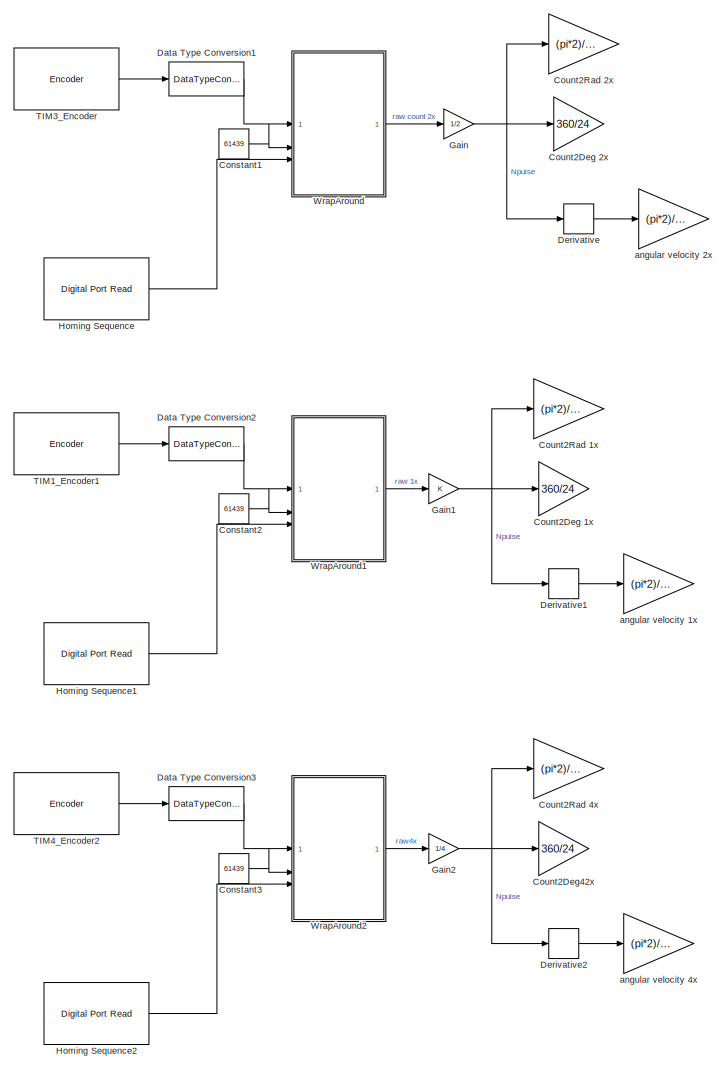
[diagram: root canvas - part 1/2, left side, full height]
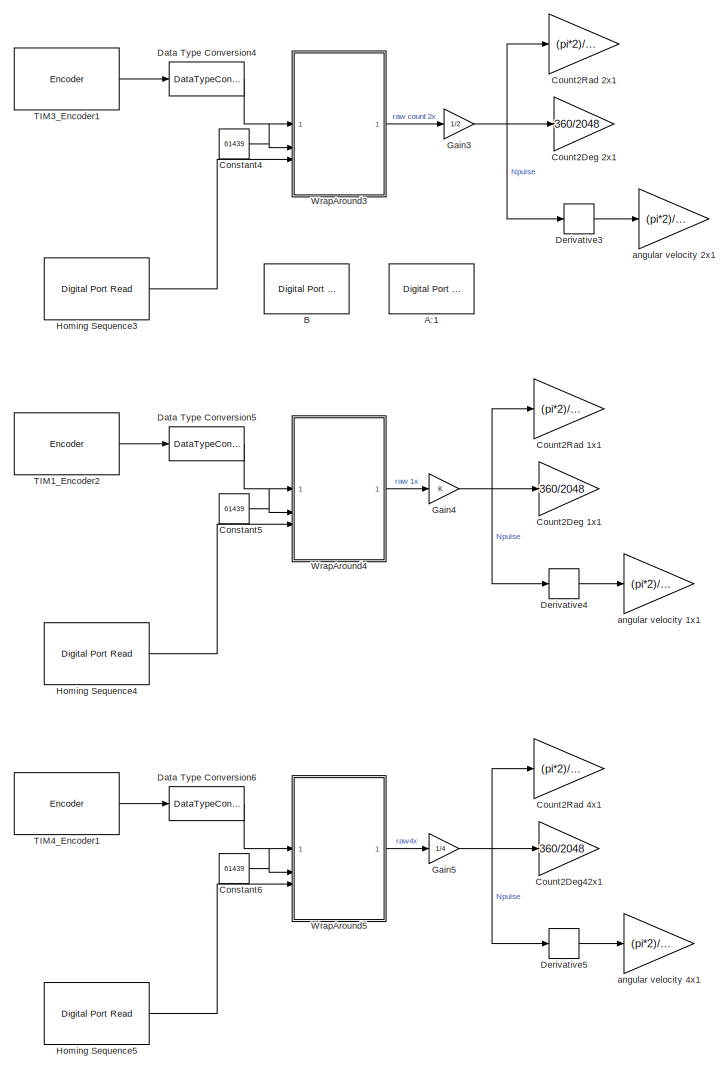
[diagram: root canvas - part 2/2, right side, full height]
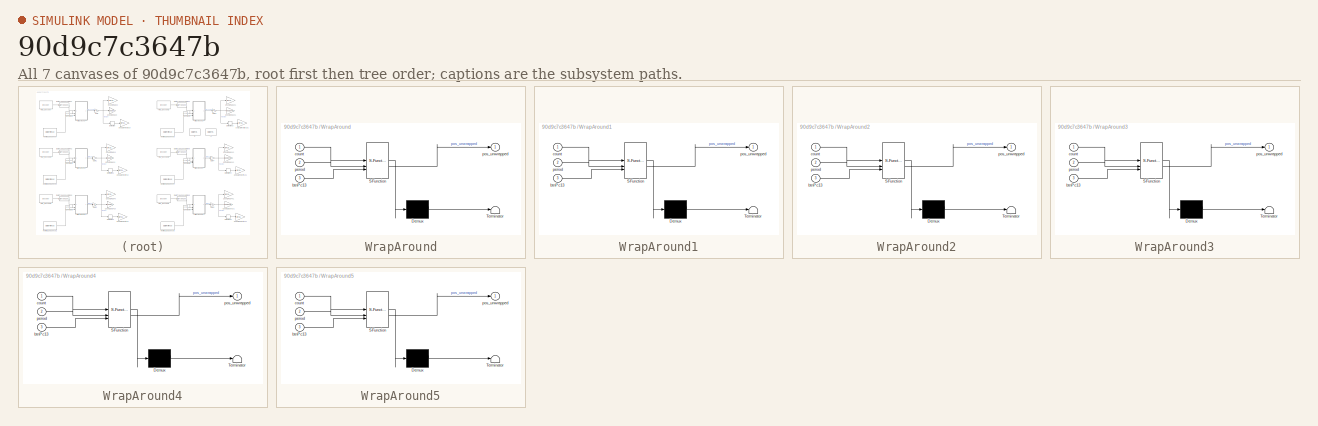
[diagram: thumbnail index - all 7 canvases of the model, root first then tree order]
MODEL slx_90d9c7c3647b
KIND model
CONFIG AbsTol = auto
CONFIG EnableMultiTasking = on
CONFIG FixedStep = 0.1
CONFIG MaxStep = auto
CONFIG MinStep = auto
CONFIG RelTol = 1e-3
CONFIG SampleTimeConstraint = Unconstrained
CONFIG SolverName = FixedStepAuto
CONFIG StartTime = 0.0
CONFIG StopTime = 100
BLOCK [Reference] A:1  REF=stm32f4xxblockslib/Digital Port Read
  LibrarySourceBlock = stm32g4xxblockslib/Digital Port Read
  SourceBlock = stm32f4xxblockslib/Digital Port Read
  SourceType = stm32cube.blocks.DigitalPortRead
BLOCK [Reference] B  REF=stm32f4xxblockslib/Digital Port Read
  LibrarySourceBlock = stm32g4xxblockslib/Digital Port Read
  SourceBlock = stm32f4xxblockslib/Digital Port Read
  SourceType = stm32cube.blocks.DigitalPortRead
BLOCK [Constant] Constant1
  Commented = on
  Value = 61439
BLOCK [Constant] Constant2
  Commented = on
  Value = 61439
BLOCK [Constant] Constant3
  Commented = on
  Value = 61439
BLOCK [Constant] Constant4
  Value = 61439
BLOCK [Constant] Constant5
  Value = 61439
BLOCK [Constant] Constant6
  Value = 61439
BLOCK [Gain] Count2Deg 1x
  Commented = on
  Gain = 360/24
BLOCK [Gain] Count2Deg 1x1
  Gain = 360/2048
BLOCK [Gain] Count2Deg 2x
  Commented = on
  Gain = 360/24
BLOCK [Gain] Count2Deg 2x1
  Gain = 360/2048
BLOCK [Gain] Count2Deg42x
  Commented = on
  Gain = 360/24
BLOCK [Gain] Count2Deg42x1
  Gain = 360/2048
BLOCK [Gain] Count2Rad 1x
  Commented = on
  Gain = (pi*2)/24
BLOCK [Gain] Count2Rad 1x1
  Gain = (pi*2)/2048
BLOCK [Gain] Count2Rad 2x
  Commented = on
  Gain = (pi*2)/24
BLOCK [Gain] Count2Rad 2x1
  Gain = (pi*2)/2048
BLOCK [Gain] Count2Rad 4x
  Commented = on
  Gain = (pi*2)/24
BLOCK [Gain] Count2Rad 4x1
  Gain = (pi*2)/2048
BLOCK [DataTypeConversion] Data Type Conversion1
  Commented = on
  OutDataTypeStr = double
  RndMeth = Floor
  SaturateOnIntegerOverflow = off
BLOCK [DataTypeConversion] Data Type Conversion2
  Commented = on
  OutDataTypeStr = double
  RndMeth = Floor
  SaturateOnIntegerOverflow = off
BLOCK [DataTypeConversion] Data Type Conversion3
  Commented = on
  OutDataTypeStr = double
  RndMeth = Floor
  SaturateOnIntegerOverflow = off
BLOCK [DataTypeConversion] Data Type Conversion4
  OutDataTypeStr = double
  RndMeth = Floor
  SaturateOnIntegerOverflow = off
BLOCK [DataTypeConversion] Data Type Conversion5
  OutDataTypeStr = double
  RndMeth = Floor
  SaturateOnIntegerOverflow = off
BLOCK [DataTypeConversion] Data Type Conversion6
  OutDataTypeStr = double
  RndMeth = Floor
  SaturateOnIntegerOverflow = off
BLOCK [Derivative] Derivative
  Commented = on
BLOCK [Derivative] Derivative1
  Commented = on
BLOCK [Derivative] Derivative2
  Commented = on
BLOCK [Derivative] Derivative3
BLOCK [Derivative] Derivative4
BLOCK [Derivative] Derivative5
BLOCK [Gain] Gain
  Commented = on
  Gain = 1/2
BLOCK [Gain] Gain1
  Commented = on
BLOCK [Gain] Gain2
  Commented = on
  Gain = 1/4
BLOCK [Gain] Gain3
  Gain = 1/2
BLOCK [Gain] Gain4
BLOCK [Gain] Gain5
  Gain = 1/4
BLOCK [Reference] Homing Sequence  REF=stm32f4xxblockslib/Digital Port Read
  Commented = on
  LibrarySourceBlock = stm32g4xxblockslib/Digital Port Read
  SourceBlock = stm32f4xxblockslib/Digital Port Read
  SourceType = stm32cube.blocks.DigitalPortRead
BLOCK [Reference] Homing Sequence1  REF=stm32f4xxblockslib/Digital Port Read
  Commented = on
  LibrarySourceBlock = stm32g4xxblockslib/Digital Port Read
  SourceBlock = stm32f4xxblockslib/Digital Port Read
  SourceType = stm32cube.blocks.DigitalPortRead
BLOCK [Reference] Homing Sequence2  REF=stm32f4xxblockslib/Digital Port Read
  Commented = on
  LibrarySourceBlock = stm32g4xxblockslib/Digital Port Read
  SourceBlock = stm32f4xxblockslib/Digital Port Read
  SourceType = stm32cube.blocks.DigitalPortRead
BLOCK [Reference] Homing Sequence3  REF=stm32f4xxblockslib/Digital Port Read
  LibrarySourceBlock = stm32g4xxblockslib/Digital Port Read
  SourceBlock = stm32f4xxblockslib/Digital Port Read
  SourceType = stm32cube.blocks.DigitalPortRead
BLOCK [Reference] Homing Sequence4  REF=stm32f4xxblockslib/Digital Port Read
  LibrarySourceBlock = stm32g4xxblockslib/Digital Port Read
  SourceBlock = stm32f4xxblockslib/Digital Port Read
  SourceType = stm32cube.blocks.DigitalPortRead
BLOCK [Reference] Homing Sequence5  REF=stm32f4xxblockslib/Digital Port Read
  LibrarySourceBlock = stm32g4xxblockslib/Digital Port Read
  SourceBlock = stm32f4xxblockslib/Digital Port Read
  SourceType = stm32cube.blocks.DigitalPortRead
BLOCK [Reference] TIM1_Encoder1  REF=stm32g4xxblockslib/Encoder
  Commented = on
  SourceBlock = stm32g4xxblockslib/Encoder
  SourceType = stm32cube.blocks.EncoderBlockForG4
BLOCK [Reference] TIM1_Encoder2  REF=stm32g4xxblockslib/Encoder
  SourceBlock = stm32g4xxblockslib/Encoder
  SourceType = stm32cube.blocks.EncoderBlockForG4
BLOCK [Reference] TIM3_Encoder  REF=stm32g4xxblockslib/Encoder
  Commented = on
  SourceBlock = stm32g4xxblockslib/Encoder
  SourceType = stm32cube.blocks.EncoderBlockForG4
BLOCK [Reference] TIM3_Encoder1  REF=stm32g4xxblockslib/Encoder
  SourceBlock = stm32g4xxblockslib/Encoder
  SourceType = stm32cube.blocks.EncoderBlockForG4
BLOCK [Reference] TIM4_Encoder1  REF=stm32g4xxblockslib/Encoder
  SourceBlock = stm32g4xxblockslib/Encoder
  SourceType = stm32cube.blocks.EncoderBlockForG4
BLOCK [Reference] TIM4_Encoder2  REF=stm32g4xxblockslib/Encoder
  Commented = on
  SourceBlock = stm32g4xxblockslib/Encoder
  SourceType = stm32cube.blocks.EncoderBlockForG4
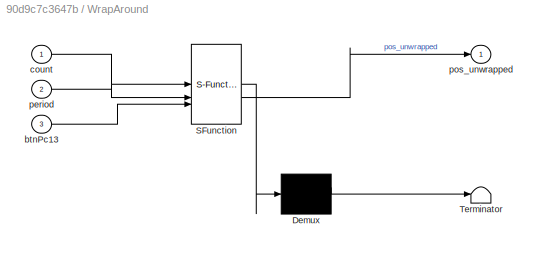
BLOCK [SubSystem] WrapAround
  Commented = on
  ErrorFcn = Stateflow.Translate.translate
  PermitHierarchicalResolution = ExplicitOnly
  SFBlockType = MATLAB Function
  TreatAsAtomicUnit = on
BLOCK [Demux] WrapAround/ Demux 
  Outputs = 1
BLOCK [S-Function] WrapAround/ SFunction 
  EnableBusSupport = off
  FunctionName = sf_sfun
  PortCounts = [3 2]
  SFcnIsStateOwnerBlock = off
  SFunctionDeploymentMode = off
  Tag = Stateflow S-Function 2
BLOCK [Terminator] WrapAround/ Terminator 
BLOCK [Inport] WrapAround/btnPc13
  Port = 3
BLOCK [Inport] WrapAround/count
BLOCK [Inport] WrapAround/period
  Port = 2
BLOCK [Outport] WrapAround/pos_unwrapped
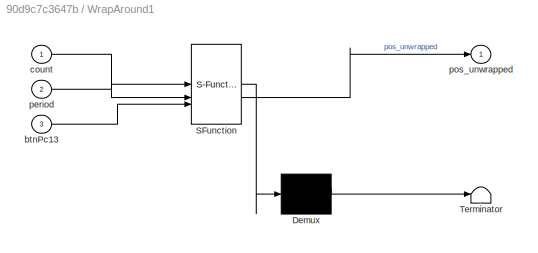
BLOCK [SubSystem] WrapAround1
  Commented = on
  ErrorFcn = Stateflow.Translate.translate
  PermitHierarchicalResolution = ExplicitOnly
  SFBlockType = MATLAB Function
  TreatAsAtomicUnit = on
BLOCK [Demux] WrapAround1/ Demux 
  Outputs = 1
BLOCK [S-Function] WrapAround1/ SFunction 
  EnableBusSupport = off
  FunctionName = sf_sfun
  PortCounts = [3 2]
  SFcnIsStateOwnerBlock = off
  SFunctionDeploymentMode = off
  Tag = Stateflow S-Function 1
BLOCK [Terminator] WrapAround1/ Terminator 
BLOCK [Inport] WrapAround1/btnPc13
  Port = 3
BLOCK [Inport] WrapAround1/count
BLOCK [Inport] WrapAround1/period
  Port = 2
BLOCK [Outport] WrapAround1/pos_unwrapped
BLOCK [SubSystem] WrapAround2
  Commented = on
  ErrorFcn = Stateflow.Translate.translate
  PermitHierarchicalResolution = ExplicitOnly
  SFBlockType = MATLAB Function
  TreatAsAtomicUnit = on
BLOCK [Demux] WrapAround2/ Demux 
  Outputs = 1
BLOCK [S-Function] WrapAround2/ SFunction 
  EnableBusSupport = off
  FunctionName = sf_sfun
  PortCounts = [3 2]
  SFcnIsStateOwnerBlock = off
  SFunctionDeploymentMode = off
  Tag = Stateflow S-Function 3
BLOCK [Terminator] WrapAround2/ Terminator 
BLOCK [Inport] WrapAround2/btnPc13
  Port = 3
BLOCK [Inport] WrapAround2/count
BLOCK [Inport] WrapAround2/period
  Port = 2
BLOCK [Outport] WrapAround2/pos_unwrapped
BLOCK [SubSystem] WrapAround3
  ErrorFcn = Stateflow.Translate.translate
  PermitHierarchicalResolution = ExplicitOnly
  SFBlockType = MATLAB Function
  TreatAsAtomicUnit = on
BLOCK [Demux] WrapAround3/ Demux 
  Outputs = 1
BLOCK [S-Function] WrapAround3/ SFunction 
  EnableBusSupport = off
  FunctionName = sf_sfun
  PortCounts = [3 2]
  SFcnIsStateOwnerBlock = off
  SFunctionDeploymentMode = off
  Tag = Stateflow S-Function 4
BLOCK [Terminator] WrapAround3/ Terminator 
BLOCK [Inport] WrapAround3/btnPc13
  Port = 3
BLOCK [Inport] WrapAround3/count
BLOCK [Inport] WrapAround3/period
  Port = 2
BLOCK [Outport] WrapAround3/pos_unwrapped
BLOCK [SubSystem] WrapAround4
  ErrorFcn = Stateflow.Translate.translate
  PermitHierarchicalResolution = ExplicitOnly
  SFBlockType = MATLAB Function
  TreatAsAtomicUnit = on
BLOCK [Demux] WrapAround4/ Demux 
  Outputs = 1
BLOCK [S-Function] WrapAround4/ SFunction 
  EnableBusSupport = off
  FunctionName = sf_sfun
  PortCounts = [3 2]
  SFcnIsStateOwnerBlock = off
  SFunctionDeploymentMode = off
  Tag = Stateflow S-Function 5
BLOCK [Terminator] WrapAround4/ Terminator 
BLOCK [Inport] WrapAround4/btnPc13
  Port = 3
BLOCK [Inport] WrapAround4/count
BLOCK [Inport] WrapAround4/period
  Port = 2
BLOCK [Outport] WrapAround4/pos_unwrapped
BLOCK [SubSystem] WrapAround5
  ErrorFcn = Stateflow.Translate.translate
  PermitHierarchicalResolution = ExplicitOnly
  SFBlockType = MATLAB Function
  TreatAsAtomicUnit = on
BLOCK [Demux] WrapAround5/ Demux 
  Outputs = 1
BLOCK [S-Function] WrapAround5/ SFunction 
  EnableBusSupport = off
  FunctionName = sf_sfun
  PortCounts = [3 2]
  SFcnIsStateOwnerBlock = off
  SFunctionDeploymentMode = off
  Tag = Stateflow S-Function 6
BLOCK [Terminator] WrapAround5/ Terminator 
BLOCK [Inport] WrapAround5/btnPc13
  Port = 3
BLOCK [Inport] WrapAround5/count
BLOCK [Inport] WrapAround5/period
  Port = 2
BLOCK [Outport] WrapAround5/pos_unwrapped
BLOCK [Gain] angular velocity 1x
  Commented = on
  Gain = (pi*2)/24
BLOCK [Gain] angular velocity 1x1
  Gain = (pi*2)/2048
BLOCK [Gain] angular velocity 2x
  Commented = on
  Gain = (pi*2)/24
BLOCK [Gain] angular velocity 2x1
  Gain = (pi*2)/2048
BLOCK [Gain] angular velocity 4x
  Commented = on
  Gain = (pi*2)/24
BLOCK [Gain] angular velocity 4x1
  Gain = (pi*2)/2048
LINE Constant1:1 -> WrapAround:2
LINE Constant2:1 -> WrapAround1:2
LINE Constant3:1 -> WrapAround2:2
LINE Constant4:1 -> WrapAround3:2
LINE Constant5:1 -> WrapAround4:2
LINE Constant6:1 -> WrapAround5:2
LINE Data Type Conversion1:1 -> WrapAround:1
LINE Data Type Conversion2:1 -> WrapAround1:1
LINE Data Type Conversion3:1 -> WrapAround2:1
LINE Data Type Conversion4:1 -> WrapAround3:1
LINE Data Type Conversion5:1 -> WrapAround4:1
LINE Data Type Conversion6:1 -> WrapAround5:1
LINE Derivative1:1 -> angular velocity 1x:1
LINE Derivative2:1 -> angular velocity 4x:1
LINE Derivative3:1 -> angular velocity 2x1:1
LINE Derivative4:1 -> angular velocity 1x1:1
LINE Derivative5:1 -> angular velocity 4x1:1
LINE Derivative:1 -> angular velocity 2x:1
NET Gain1:1 -> Count2Deg 1x:1, Count2Rad 1x:1, Derivative1:1
NET Gain2:1 -> Count2Deg42x:1, Count2Rad 4x:1, Derivative2:1
NET Gain3:1 -> Count2Deg 2x1:1, Count2Rad 2x1:1, Derivative3:1
NET Gain4:1 -> Count2Deg 1x1:1, Count2Rad 1x1:1, Derivative4:1
NET Gain5:1 -> Count2Deg42x1:1, Count2Rad 4x1:1, Derivative5:1
NET Gain:1 -> Count2Deg 2x:1, Count2Rad 2x:1, Derivative:1
LINE Homing Sequence1:1 -> WrapAround1:3
LINE Homing Sequence2:1 -> WrapAround2:3
LINE Homing Sequence3:1 -> WrapAround3:3
LINE Homing Sequence4:1 -> WrapAround4:3
LINE Homing Sequence5:1 -> WrapAround5:3
LINE Homing Sequence:1 -> WrapAround:3
LINE TIM1_Encoder1:1 -> Data Type Conversion2:1
LINE TIM1_Encoder2:1 -> Data Type Conversion5:1
LINE TIM3_Encoder1:1 -> Data Type Conversion4:1
LINE TIM3_Encoder:1 -> Data Type Conversion1:1
LINE TIM4_Encoder1:1 -> Data Type Conversion6:1
LINE TIM4_Encoder2:1 -> Data Type Conversion3:1
LINE WrapAround1:1 -> Gain1:1
LINE WrapAround2:1 -> Gain2:1
LINE WrapAround3:1 -> Gain3:1
LINE WrapAround4:1 -> Gain4:1
LINE WrapAround5:1 -> Gain5:1
LINE WrapAround:1 -> Gain:1
note: NET lines group one-source signal fan-out (src -> all destinations, sorted); 1:1 wires keep LINE
CHART WrapAround1 states=1 transitions=1
  STATE_LABEL 'eML_blk_kernel()'
  STATE_LABEL 'SCRIPT:\nfunction pos_unwrapped = WrapAround_HomeOnPA5(count, period, btnPc13)\n% WrapAround_HomeOnPA5\n% - แก้ overflow ของ encoder counter และสะสมตำแหน่งต่อเนื่อง\n% - เมื่อ "ปุ่ม PA5" ถูกกด (ขอบขาขึ้นหลังดีบาวน์) ให้รีเซ็ต pos_unwrapped = 0\n%\n% Inputs\n%   count   : ค่าจาก TIMx encoder (0..period)\n%   period  : ค่าขอบบนของเคาน์เตอร์ (เช่น 61439) → modulo = period+1\n%   btnPc13  : 1 = ปุ่มถูกกด, 0 = ...<+1608ch>'  <repeated x4 — deduplicated; at blocks: WrapAround1, WrapAround2, WrapAround4, WrapAround5>
CHART WrapAround states=1 transitions=1
  STATE_LABEL 'eML_blk_kernel()'
  STATE_LABEL 'SCRIPT:\nfunction pos_unwrapped=WrapAround_HomeOnPA5(count,period,btnPc13)\n%Inputs:\n%count   : ค่าจากตัวนับของ TIMx encoder\n%period  : ค่าขอบบนของเคาน์เตอร์ (61439) → โมดูลัส = period + 1\n%btnPc13 : สัญญาณปุ่ม 1 = กด, 0 = ไม่กด เพื่อ set home\n%Output:\n%pos_unwrapped : ตำแหน่งสะสมแบบต่อเนื่อง (รีเซ็ตเป็นศูนย์เมื่อโฮม)\n\npersistent prevCount pos\npersistent stableBtn prevStable\npersistent cnt\n\nif isemp...<+1906ch>'
CHART WrapAround2 states=1 transitions=1
  STATE_LABEL 'eML_blk_kernel()'
CHART WrapAround3 states=1 transitions=1
  STATE_LABEL 'eML_blk_kernel()'
  STATE_LABEL 'SCRIPT:\nfunction pos_unwrapped = WrapAround_HomeOnPA5(count, period, btnPc13)\npersistent prevCount pos         % สำหรับแก้ wrap และสะสมตำแหน่ง\npersistent stableBtn prevStable  % สำหรับดีบาวน์ + ตรวจขอบ\npersistent cnt                   % ตัวนับดีบาวน์\n\nif isempty(prevCount)\n    prevCount   = double(count);\n    pos         = 0.0;\n    stableBtn   = false;   % สถานะปุ่มหลังดีบาวน์\n    prevStable  = fa...<+696ch>'
CHART WrapAround4 states=1 transitions=1
  STATE_LABEL 'eML_blk_kernel()'
CHART WrapAround5 states=1 transitions=1
  STATE_LABEL 'eML_blk_kernel()'
CHART  states=0 transitions=0
CHART  states=0 transitions=0
CHART  states=0 transitions=0
CHART  states=0 transitions=0
CHART  states=0 transitions=0
CHART  states=0 transitions=0
